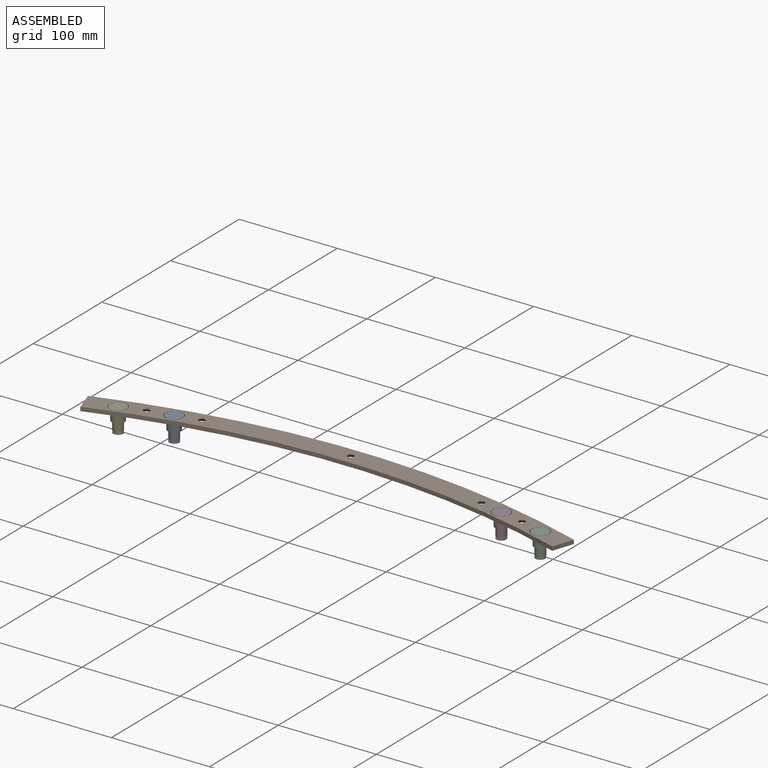
[diagram: assembled view]
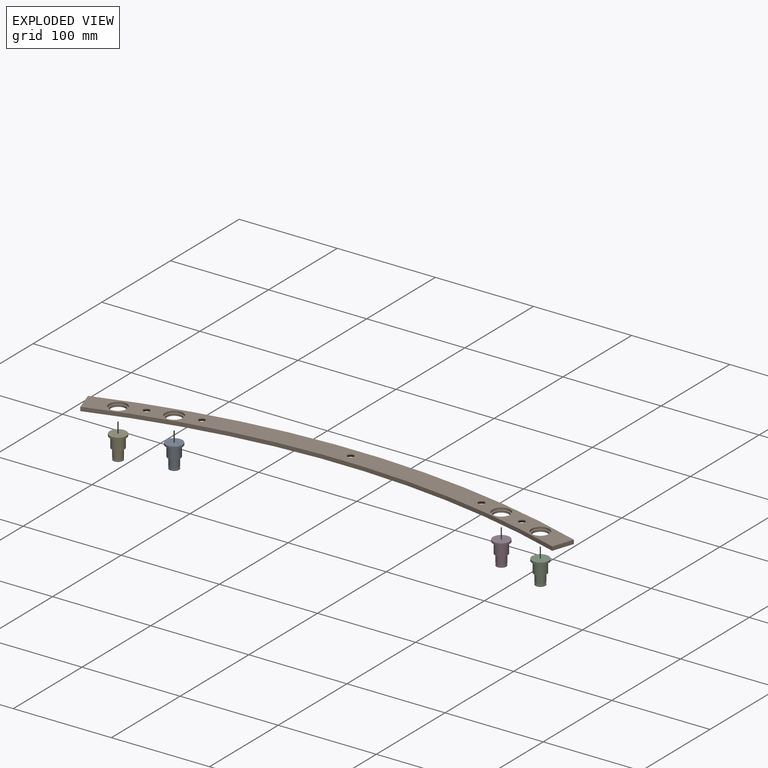
[diagram: exploded view]
GUIDED TOUR — MATED ASSEMBLY (Onshape document b43edd6b050386a0dfdd3285, AutoMate assembly b43edd6b050386a0dfdd3285_cb45868f5ee47030bb39f498_3d5b3f171962d632329e9159_default)

This assembly has 5 components, labeled P0..P4 below (a component is one placed occurrence of a part; the same part can appear more than once), held together by 4 mates. A mate is a constraint between two components; its type names the relative motion it leaves free:
  FASTENED — locks the two components together rigidly (no relative motion).
Axis/direction vectors are unit vectors and 'through' points are millimeter coordinates, both in the assembly's world frame.

MATES
  1. FASTENED "Fastened 4": P2 <-> P1, direction (0.000, 0.000, -1.000) through (329.02, 140.16, 283.74) mm
  2. FASTENED "Fastened 2": P1 <-> P0, direction (0.000, 0.000, 1.000) through (-52.86, 152.54, 283.74) mm
  3. FASTENED "Fastened 3": P3 <-> P1, direction (0.000, 0.000, -1.000) through (280.60, 152.52, 283.74) mm
  4. FASTENED "Fastened 1": P1 <-> P4, direction (0.000, 0.000, 1.000) through (-101.35, 140.16, 283.74) mm

ASSEMBLY ORDER
  1. P1 — the base component [order verified]
  2. P4 [order verified]
  3. P3 [order verified]
  4. P2 [order verified]
  5. P0 [order verified]
Order-tag legend:
  [order verified] — this step's position reverses a verified removal order: the component was checked to insert without passing through the ones already placed.

Of the 5 components, 1 carries the full construction recipe — the FeatureScript program that regenerates the part's solid from scratch; the rest are supplied as boundary geometry only.
Each toured component is shown spotlighted twice — in the assembled view, then in the exploded view, where a leader line traces a displaced component back to its assembled socket (saturated green if recipe-attached, orange if geometry-only; every other component desaturated gray) — followed by its recipe or geometry summary and the mates that hold it.
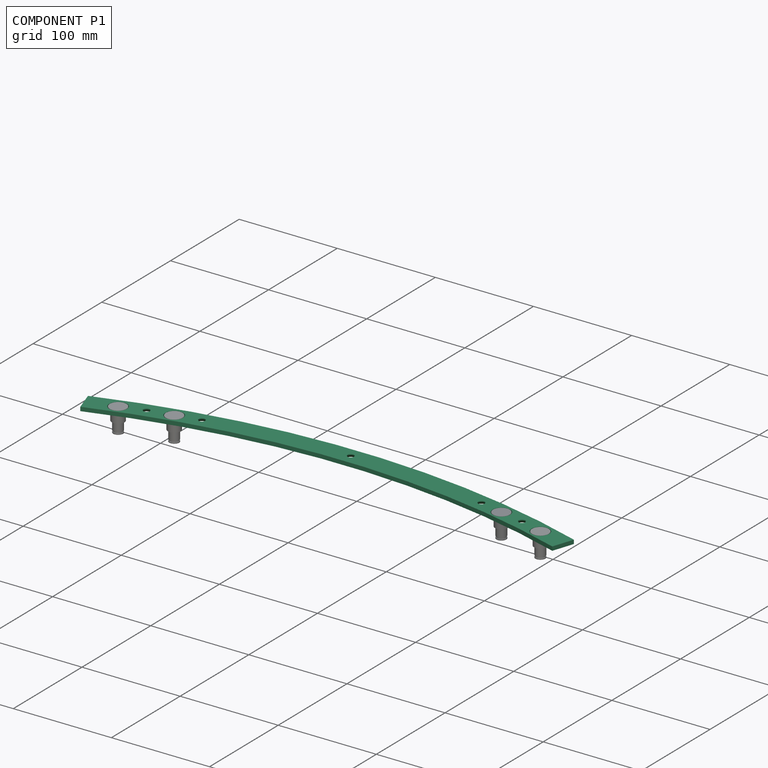
[diagram: component P1 — assembled]
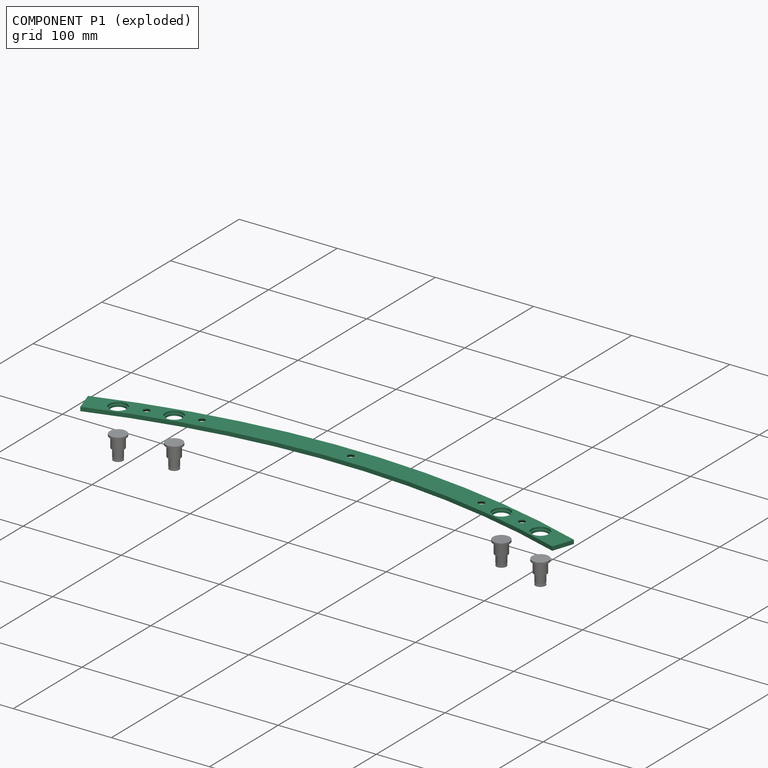
[diagram: component P1 — exploded]
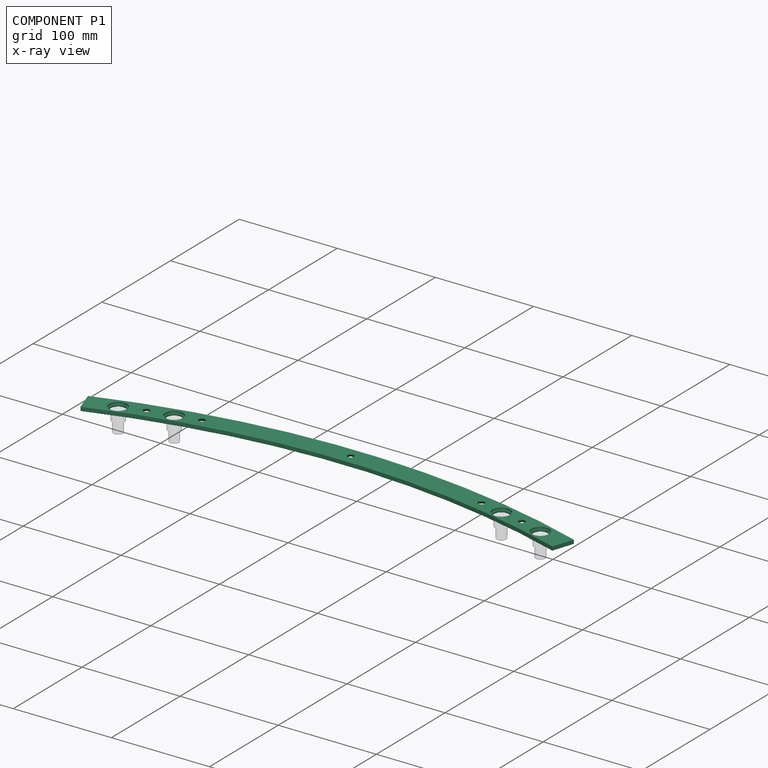
[diagram: component P1 — x-ray view]
COMPONENT P1 — recipe-attached (CADFS 00550053, mesh-verified: the recipe's output STEP matches this component's geometry to below the mesh-comparison resolution (tessellation chordal tolerance ~0.749 mm)).
Held by: FASTENED mate "Fastened 4" to P2; FASTENED mate "Fastened 2" to P0; FASTENED mate "Fastened 3" to P3; FASTENED mate "Fastened 1" to P4.
Construction recipe (FeatureScript — the CAD program that rebuilds this solid; sketch coordinates are in the units given by the * unit suffixes, e.g. mm):

FeatureScript 2345;
import(path : "onshape/std/geometry.fs", version : "2345.0");
import(path : "onshape/std/common.fs", version : "2345.0");
const mm = millimeter;
const VERTEX = EntityType.VERTEX;
const EDGE = EntityType.EDGE;
const FACE = EntityType.FACE;
const BODY = EntityType.BODY;
function v(x, y){return vector(x, y);}
function OD(order){return orderDisambiguation(order);}
function OSD(set){return originalSetDisambiguation(set);}
function TD(topology){return topologyDisambiguation(topology);}
function TDD(query){return trueDependencyDisambiguation(query);}
function sQuery(a, b, c) {return sketchEntityQuery(a, b, c);}

annotation { "Feature Type Name" : "Feature", "Feature Type Description" : "" }
export const myFeature = defineFeature(function(context is Context, id is Id, definition is map)
    precondition{}
    {
        {
            var Q0;
            Q0=qCreatedBy(makeId("Top.planeOp"),FACE);
            var sketch = newSketch(context, id + "F0", { "sketchPlane" : qUnion([Q0])});
            skLineSegment(sketch, "E0", {"start": v(0, 0) * mm, "end": v(0, 772) * mm, "construction": true});
            skLineSegment(sketch, "E1", {"start": v(0, 0) * mm, "end": v(-243.68, 732.53) * mm, "construction": true});
            skLineSegment(sketch, "E2", {"start": v(0, 0) * mm, "end": v(-167.1, 753.7) * mm, "construction": true});
            skCircle(sketch, "E3", {"center": v(0, 0) * mm, "radius": 772 * mm, "construction": true});
            skPoint(sketch, "E4", {"position": v(-167.1, 753.7) * mm});
            skPoint(sketch, "E5", {"position": v(-243.68, 732.53) * mm});
            skArc(sketch, "E6", {"start": v(-243.68, 732.53) * mm, "mid": v(45.9, 770.63) * mm, "end": v(328.9, 698.44) * mm});
            skSolve(sketch);
        }
        {
            var Q0;
            Q0=qCreatedBy(makeId("Right.planeOp"),FACE);
            var sketch = newSketch(context, id + "F1", { "sketchPlane" : qUnion([Q0])});
            skLineSegment(sketch, "E7", {"start": v(772, 0) * mm, "end": v(762, 0) * mm});
            skLineSegment(sketch, "E8", {"start": v(762, 0) * mm, "end": v(762, 4) * mm});
            skLineSegment(sketch, "E9", {"start": v(762, 4) * mm, "end": v(784.5, 4) * mm});
            skLineSegment(sketch, "E10", {"start": v(772, 0) * mm, "end": v(784.5, 0) * mm});
            skLineSegment(sketch, "E11", {"start": v(784.5, 0) * mm, "end": v(784.5, 4) * mm});
            skLineSegment(sketch, "E12", {"start": v(0, 0) * mm, "end": v(0, 18.51) * mm, "construction": true});
            skLineSegment(sketch, "E13", {"start": v(0, 0) * mm, "end": v(772, 0) * mm, "construction": true});
            skSolve(sketch);
        }
        {
            var Q0;
            Q0=makeQuery(id+"F1.imprint","IMPRINT",FACE,{"disambiguationData":[TD([[makeQuery(id+"F1.imprint","IMPRINT",EDGE,{"derivedFrom":sQuery(id+"F1.wireOp",EDGE,"E7")}),-1.0]])]});
            var Q1;
            Q1=sQuery(id+"F1.wireOp",EDGE,"E12");
            revolve(context, id + "F2", {"surfaceOperationType" : NewSurfaceOperationType.NEW, "entities" : qUnion([Q0]), "axis" : qUnion([Q1]), "revolveType" : RevolveType.SYMMETRIC, "angle" : 36.8 * degree});
        }
        {
            var Q0;
            Q0=makeQuery(id+"F2.opRevolve","SWEPT_FACE",FACE,{"disambiguationData":[OSD([sQuery(id+"F1.wireOp",EDGE,"E7"),sQuery(id+"F1.wireOp",EDGE,"E10")])]});
            var sketch = newSketch(context, id + "F3", { "sketchPlane" : qUnion([Q0])});
            skCircle(sketch, "E14", {"center": v(0, 0) * mm, "radius": 773.25 * mm, "construction": true});
            skPoint(sketch, "E15", {"position": v(-191.27, -749.22) * mm});
            skPoint(sketch, "E16", {"position": v(-142.42, -760.02) * mm});
            skPoint(sketch, "E17", {"position": v(191.3, -749.21) * mm});
            skPoint(sketch, "E18", {"position": v(142.42, -760.02) * mm});
            skLineSegment(sketch, "E19", {"start": v(0, 0) * mm, "end": v(0, -773.25) * mm, "construction": true});
            skPoint(sketch, "E20", {"position": v(0, -773.25) * mm});
            skPoint(sketch, "E21", {"position": v(244.08, -733.72) * mm});
            skLineSegment(sketch, "E22", {"start": v(-240.52, -723.04) * mm, "end": v(-244.08, -733.72) * mm});
            skPoint(sketch, "E23", {"position": v(-244.08, -733.72) * mm});
            skLineSegment(sketch, "E24", {"start": v(-244.08, -733.72) * mm, "end": v(-245.97, -733.09) * mm});
            skSolve(sketch);
        }
        {
            var Q0;
            Q0=sQuery(id+"F3.wireOp",VERTEX,"E16");
            var Q1;
            Q1=sQuery(id+"F3.wireOp",VERTEX,"E15");
            var Q2;
            Q2=sQuery(id+"F3.wireOp",VERTEX,"E18");
            var Q3;
            Q3=sQuery(id+"F3.wireOp",VERTEX,"E17");
            var Q4;
            Q4=sQuery(id+"F3.wireOp",VERTEX,"E20");
            var Q5;
            Q5=makeQuery(id+"F2.opRevolve","SWEPT_BODY",BODY,{"disambiguationData":[OSD([sQuery(id+"F1.wireOp",EDGE,"E7"),sQuery(id+"F1.wireOp",EDGE,"E8"),sQuery(id+"F1.wireOp",EDGE,"E9"),sQuery(id+"F1.wireOp",EDGE,"E10"),sQuery(id+"F1.wireOp",EDGE,"E11")])]});
            hole(context, id + "F4", {"style" : HoleStyle.C_SINK, "endStyle" : HoleEndStyle.THROUGH, "holeDiameter" : 6.5 * mm, "cSinkDiameter" : 13 * mm, "cSinkAngle" : 90 * degree, "majorDiameter" : 5 * mm, "isTappedThrough" : true, "tappedDepth" : 12 * mm, "tapClearance" : 3, "locations" : qUnion([Q0, Q1, Q2, Q3, Q4]), "scope" : qUnion([Q5]), "startStyle" : HoleStartStyle.PART});
        }
        {
            var Q0;
            Q0=makeQuery(id+"F2.opRevolve","SWEPT_FACE",FACE,{"disambiguationData":[OSD([sQuery(id+"F1.wireOp",EDGE,"E9")])]});
            var sketch = newSketch(context, id + "F5", { "sketchPlane" : qUnion([Q0])});
            skPoint(sketch, "E25", {"position": v(-215.19, 741.92) * mm});
            skPoint(sketch, "E26", {"position": v(-166.7, 754.3) * mm});
            skPoint(sketch, "E27", {"position": v(166.76, 754.29) * mm});
            skPoint(sketch, "E28", {"position": v(215.19, 741.92) * mm});
            skSolve(sketch);
        }
        {
            var Q0;
            Q0=sQuery(id+"F5.wireOp",VERTEX,"E25");
            var Q1;
            Q1=sQuery(id+"F5.wireOp",VERTEX,"E26");
            var Q2;
            Q2=sQuery(id+"F5.wireOp",VERTEX,"E28");
            var Q3;
            Q3=sQuery(id+"F5.wireOp",VERTEX,"E27");
            var Q4;
            Q4=makeQuery(id+"F2.opRevolve","SWEPT_BODY",BODY,{"disambiguationData":[OSD([sQuery(id+"F1.wireOp",EDGE,"E7"),sQuery(id+"F1.wireOp",EDGE,"E8"),sQuery(id+"F1.wireOp",EDGE,"E9"),sQuery(id+"F1.wireOp",EDGE,"E10"),sQuery(id+"F1.wireOp",EDGE,"E11")])]});
            hole(context, id + "F6", {"style" : HoleStyle.C_BORE, "endStyle" : HoleEndStyle.THROUGH, "holeDiameter" : 15.2 * mm, "cBoreDiameter" : 18 * mm, "cBoreDepth" : 2 * mm, "majorDiameter" : 5 * mm, "isTappedThrough" : true, "tappedDepth" : 12 * mm, "tapClearance" : 3, "locations" : qUnion([Q0, Q1, Q2, Q3]), "scope" : qUnion([Q4]), "startStyle" : HoleStartStyle.PART});
        }
    });
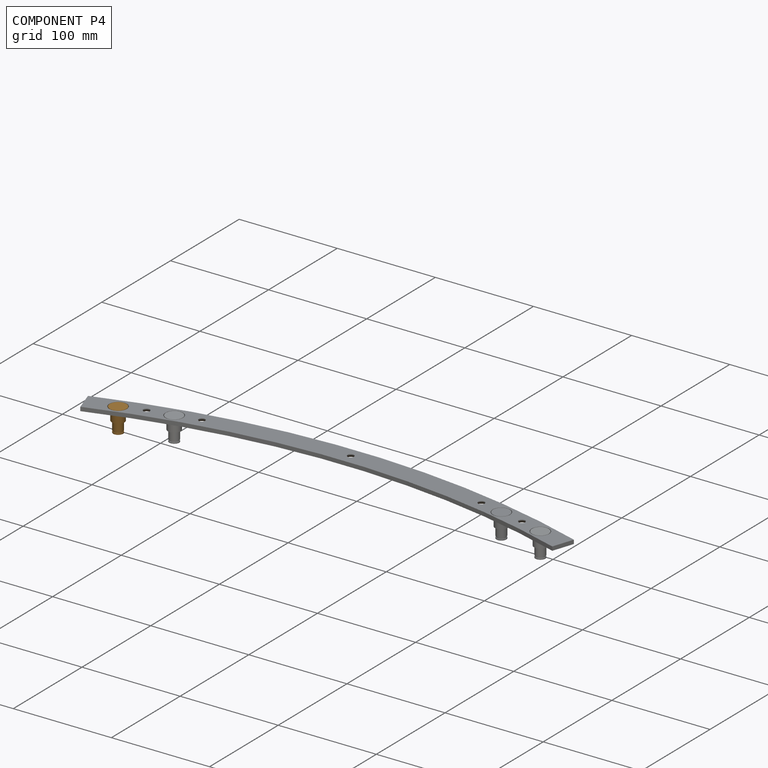
[diagram: component P4 — assembled]
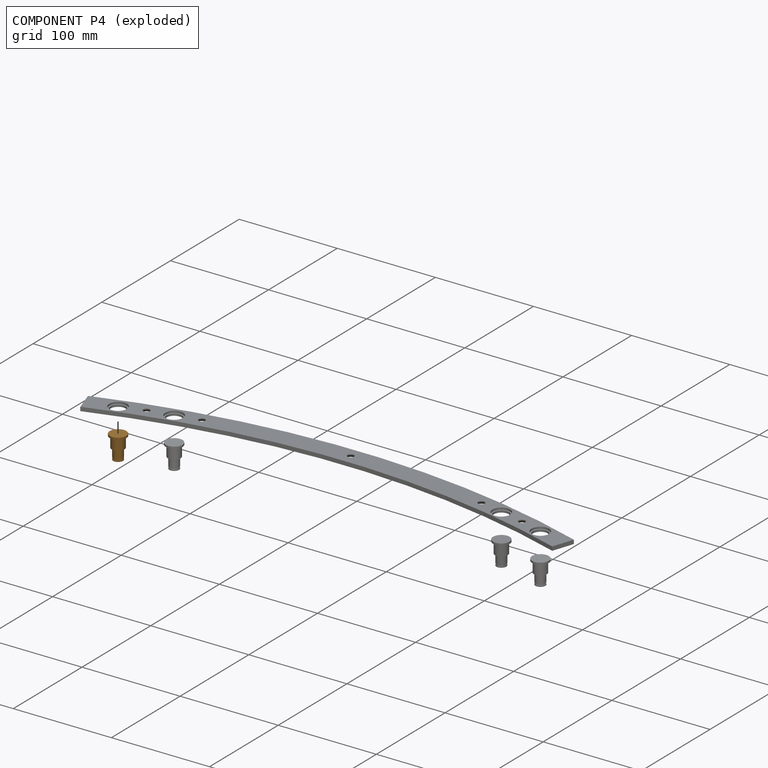
[diagram: component P4 — exploded]
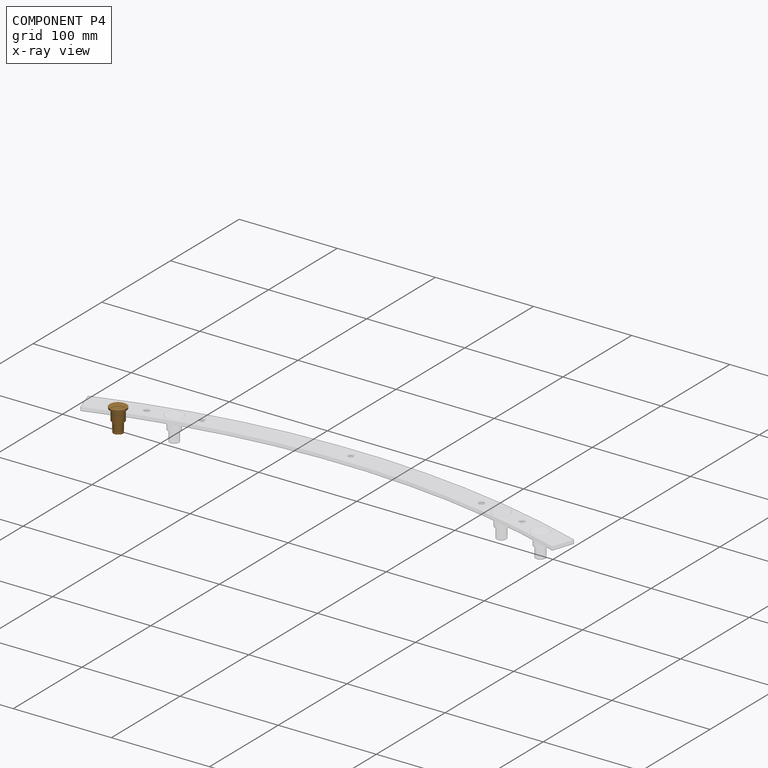
[diagram: component P4 — x-ray view]
COMPONENT P4 — geometry summary (no construction recipe available for this part):
  bounding box: 24.0 x 17.0 x 17.0 mm
  B-rep topology: 1 solid, 11 faces, 30 edges
  volume: 2754 mm^3 (40% of its bounding box)
  symmetry: revolution-symmetric about the z axis through its bounding-box center; mirror-symmetric across its x mid-plane, y mid-plane
Held by: FASTENED mate "Fastened 1" to P1.
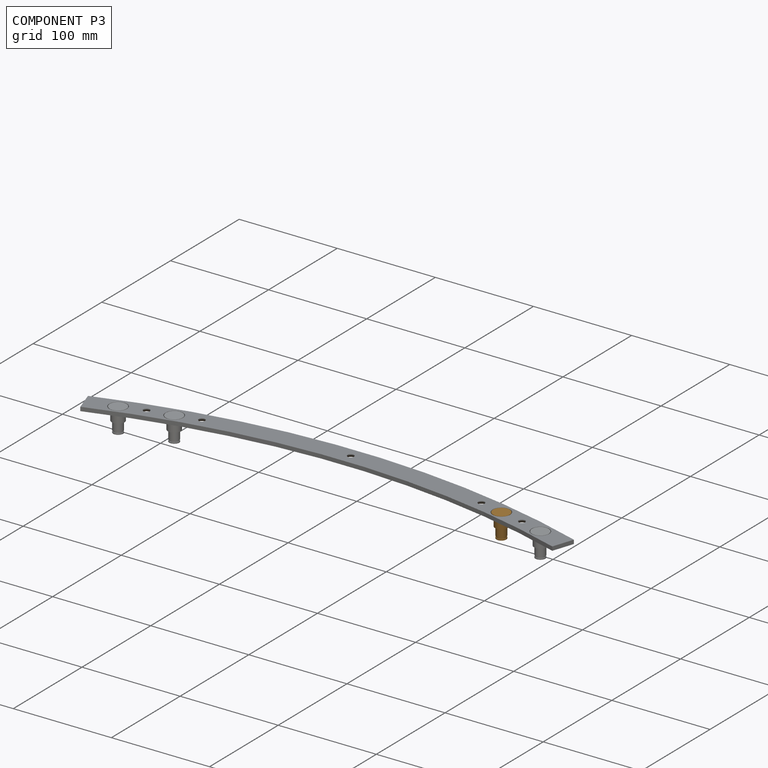
[diagram: component P3 — assembled]
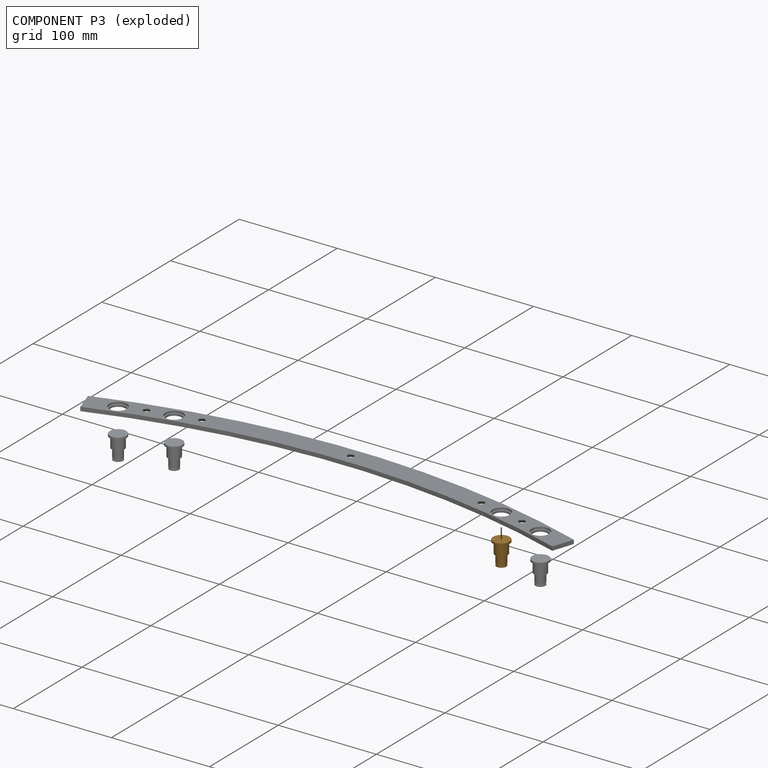
[diagram: component P3 — exploded]
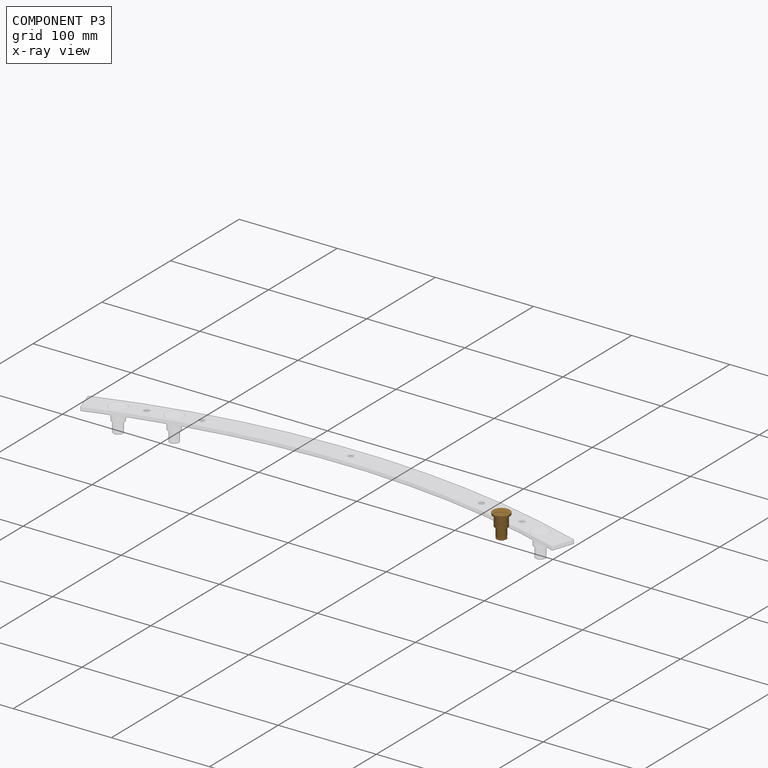
[diagram: component P3 — x-ray view]
COMPONENT P3 — geometry summary (no construction recipe available for this part):
  bounding box: 24.0 x 17.0 x 17.0 mm
  B-rep topology: 1 solid, 11 faces, 30 edges
  volume: 2754 mm^3 (40% of its bounding box)
  symmetry: revolution-symmetric about the z axis through its bounding-box center; mirror-symmetric across its x mid-plane, y mid-plane
Held by: FASTENED mate "Fastened 3" to P1.
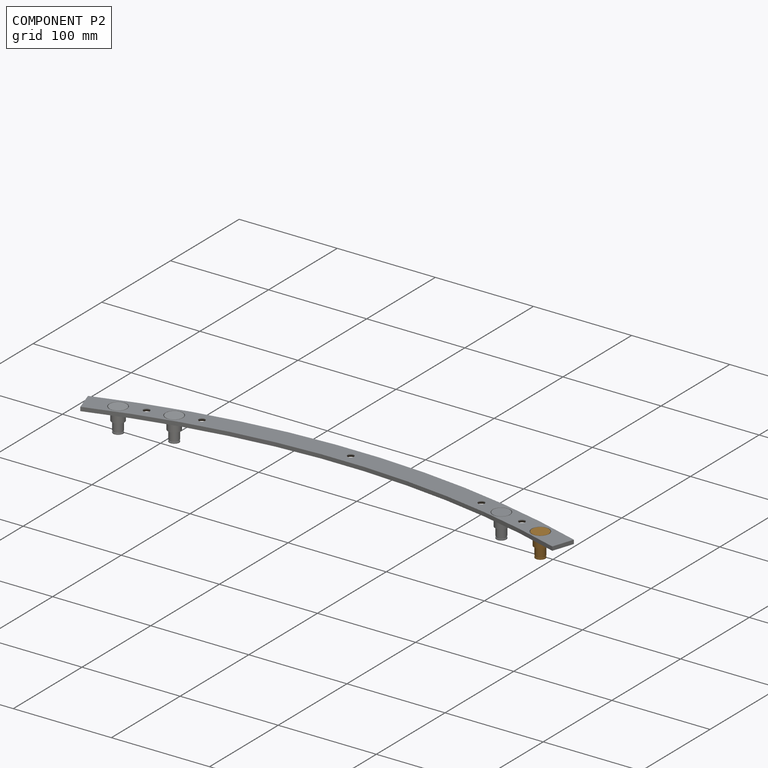
[diagram: component P2 — assembled]
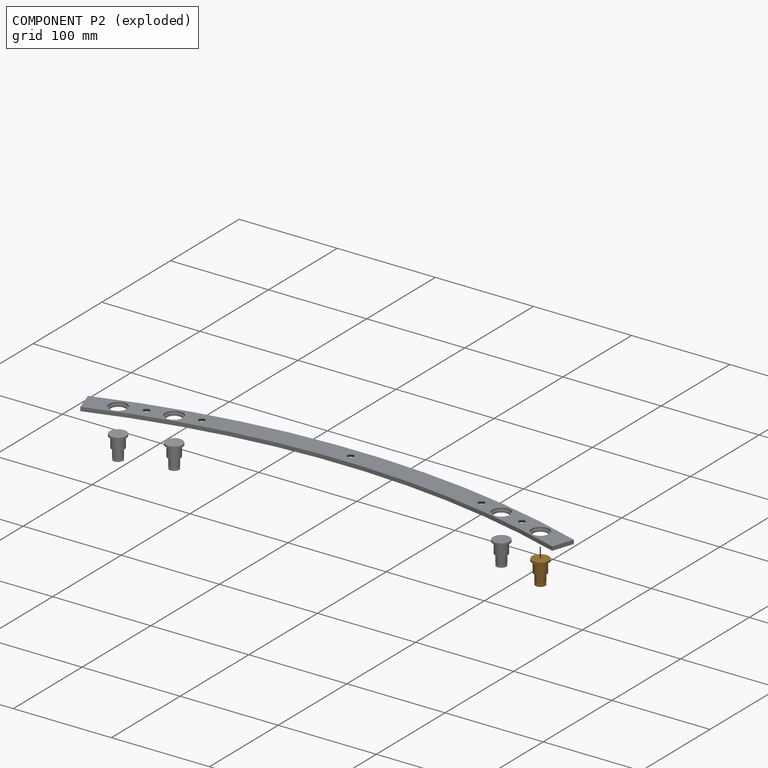
[diagram: component P2 — exploded]
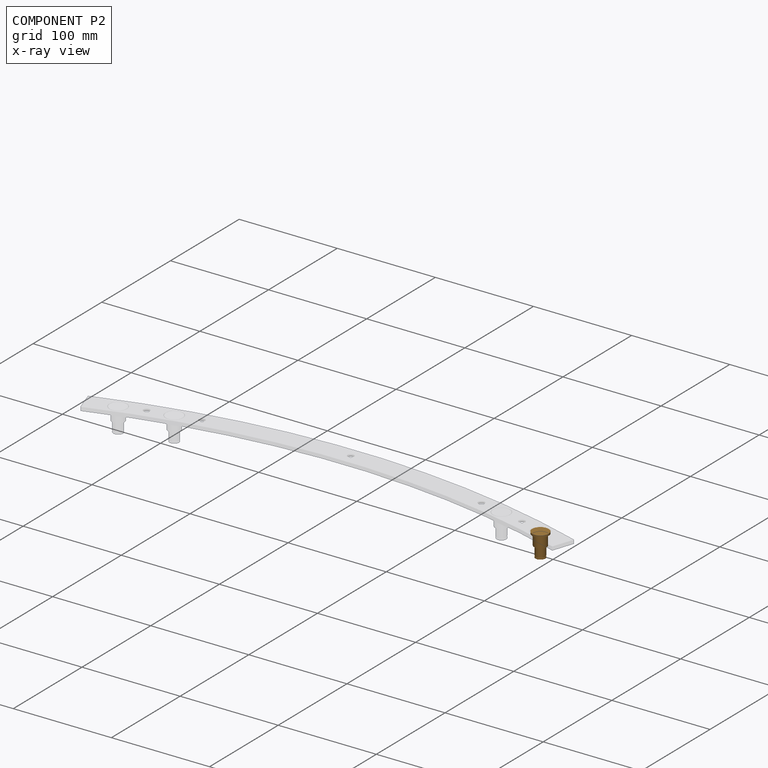
[diagram: component P2 — x-ray view]
COMPONENT P2 — geometry summary (no construction recipe available for this part):
  bounding box: 24.0 x 17.0 x 17.0 mm
  B-rep topology: 1 solid, 11 faces, 30 edges
  volume: 2754 mm^3 (40% of its bounding box)
  symmetry: revolution-symmetric about the z axis through its bounding-box center; mirror-symmetric across its x mid-plane, y mid-plane
Held by: FASTENED mate "Fastened 4" to P1.
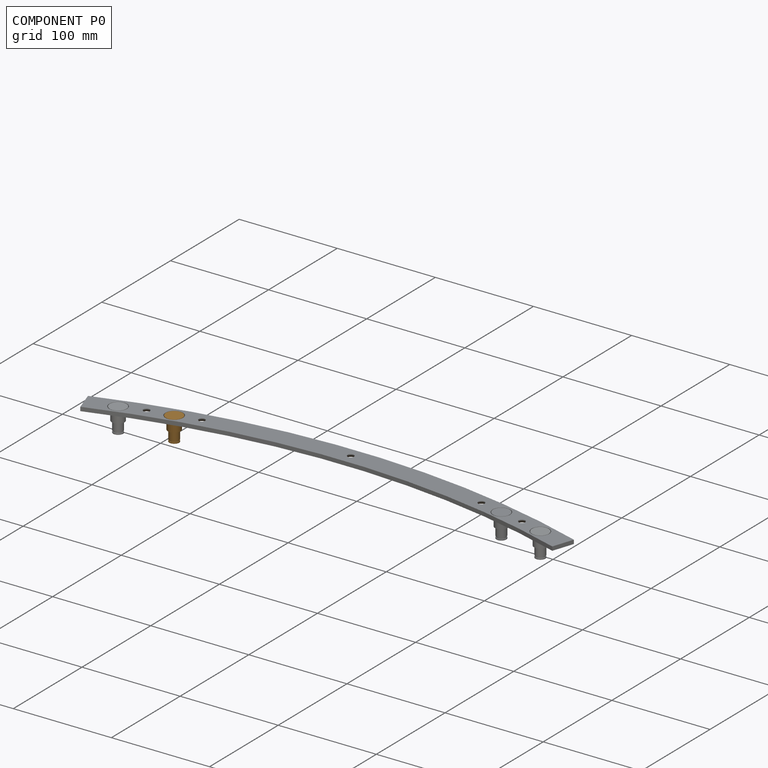
[diagram: component P0 — assembled]
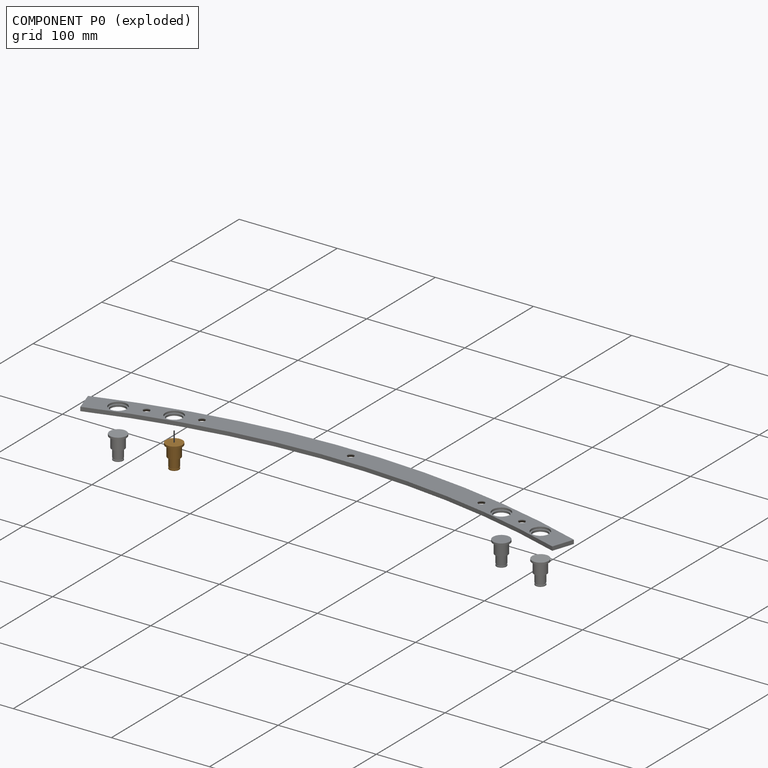
[diagram: component P0 — exploded]
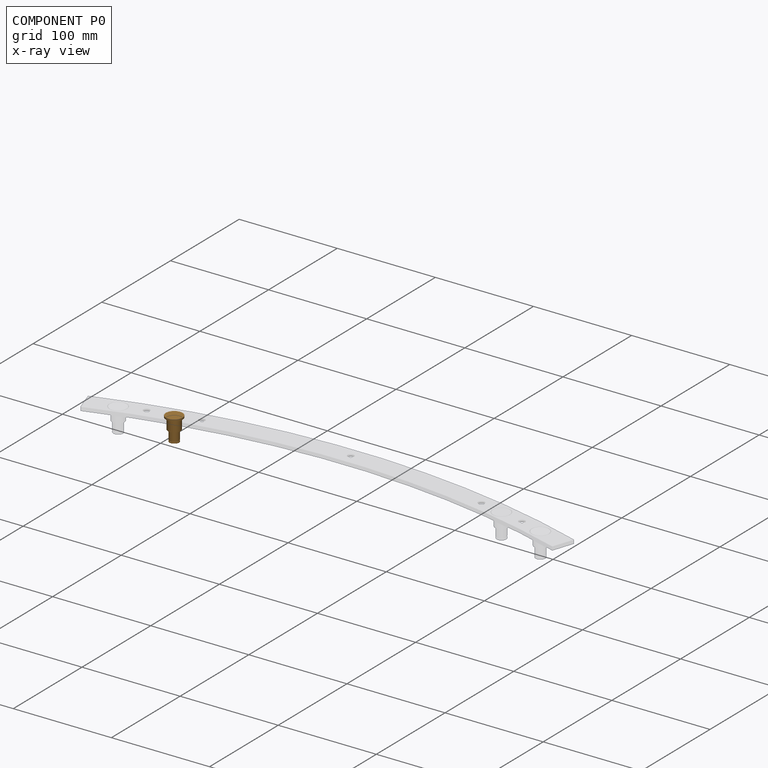
[diagram: component P0 — x-ray view]
COMPONENT P0 — geometry summary (no construction recipe available for this part):
  bounding box: 24.0 x 17.0 x 17.0 mm
  B-rep topology: 1 solid, 11 faces, 30 edges
  volume: 2754 mm^3 (40% of its bounding box)
  symmetry: revolution-symmetric about the z axis through its bounding-box center; mirror-symmetric across its x mid-plane, y mid-plane
Held by: FASTENED mate "Fastened 2" to P1.
PROVENANCE & LICENSES
Assembly (occurrences, transforms, mates, per-part STEP geometry): AutoMate dataset, Zenodo record 7776208, CC0.
Construction recipes: CADFS (HuggingFace VladPyatov/CADFS, CC-BY-4.0, layered over the ABC dataset), FeatureScript reconstruction programs keyed by ABC model id.
Join: ABC meta listings map ABC model id -> Onshape documentId; within a shared document, parts are matched by geometric signature (bounding-box dims + volume at 0.1% relative tolerance, exact B-rep face/solid counts).
Verification: 1 of this assembly's 5 components carries a recipe attachment, and every attachment is mesh-verified: the CADFS STEP and the AutoMate member STEP were compared as meshes in their shared local frame (symmetric sampled-point-to-mesh distance); worst across the 1 attachment: below the mesh-comparison resolution (tessellation chordal tolerance ~0.749 mm) on a 499 mm part.
Renders: orthographic iso camera (az 35 / el 25); the floor grid conveys scale (grid pitch printed in each image; no ruler). In the exploded view each component is displaced by its stored offset vector: the offsets alone carry the explosion direction (mate normal/axis signs are not orientation cues and do not encode it), and separation distances are assigned per mate-chain, not proportionally to assembly-order depth.
